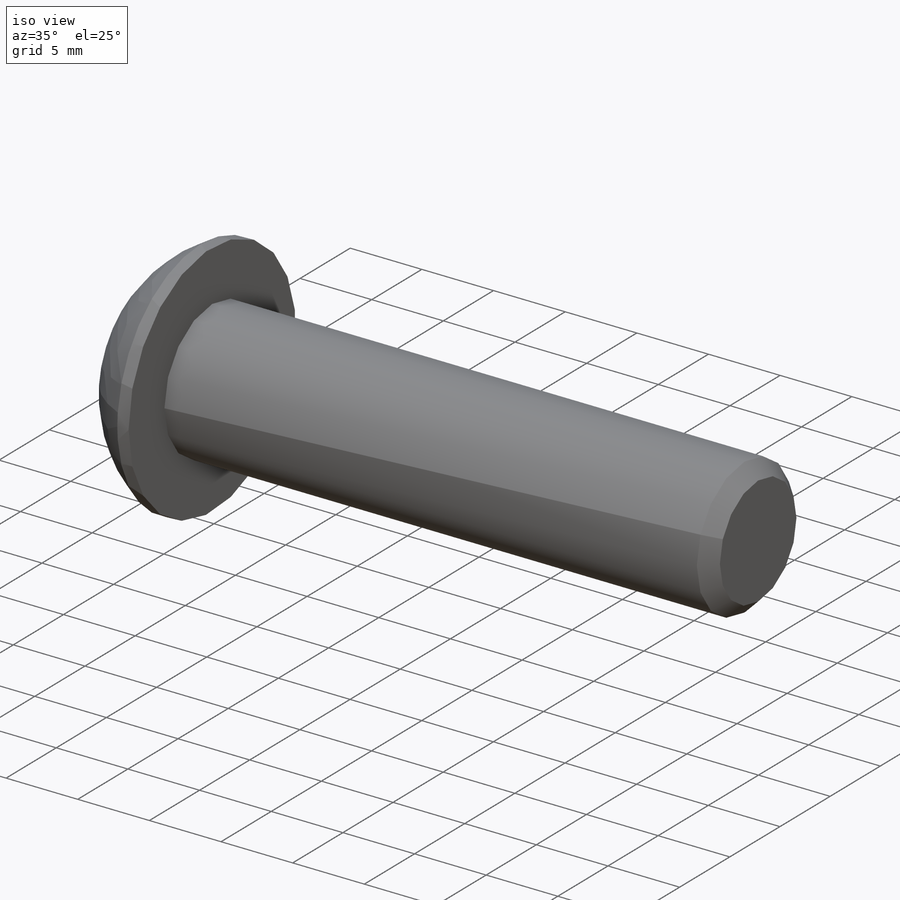
[diagram: iso view]
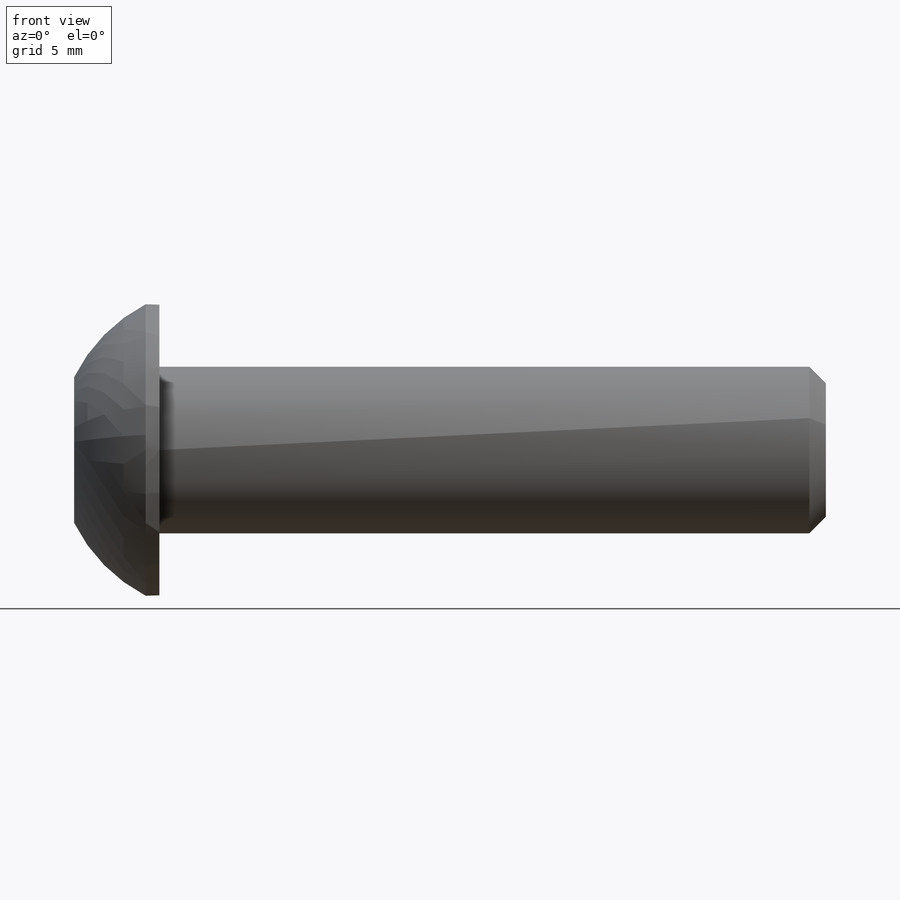
[diagram: front view]
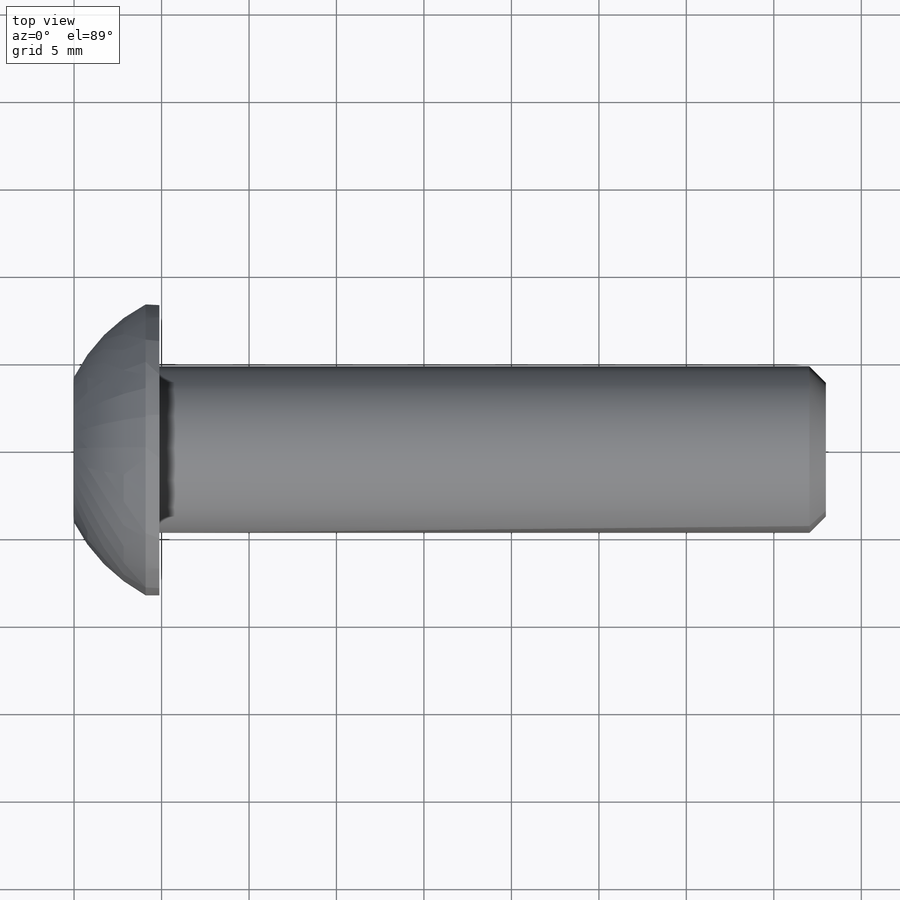
[diagram: top view]
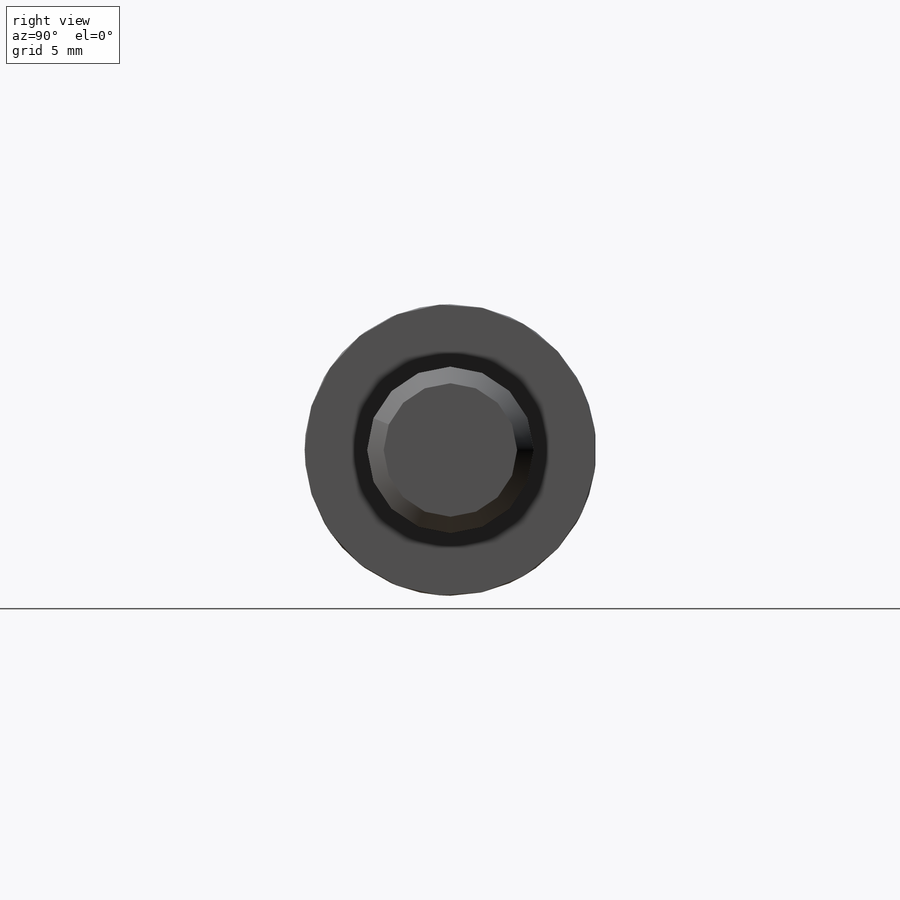
[diagram: right view]
SOLIDWORKS PART (.sldprt)
format: sldprt  version: not decoded by parser v0  size: 790,016 bytes
history: native  units: mm
features: sketch x5, plane x3, cut_revolve x2, cut_extrude x2, material x1, revolve x1, thread x1, pattern_circular x1, pattern_linear x1 (+8 scaffold rows collapsed)
feature tree (25):
  scaffold x8  (default folders/planes/origin — collapsed)
  material  "Material <not specified>"
  plane  "Plane1"
  plane  "Plane2"
  plane  "Plane3"
  sketch  "BodySke"  dims[c1.D2=~9.38469mm c1.Diameter=9.525mm c1.Length=38.1mm c1.Head_dia=16.6624mm c1.D1=8.3312mm c1.Head_ht=4.8768mm c1.Head_side_ht=0.7874mm c1.Minor_dia=7.6327mm c2.D2=~3.81635mm c2.Body_ch_ang=45.0deg c2.Advance=1.5875mm c2.Thread_nom=14.4018mm c2.Thread_lim=36.5125mm]
  revolve  "BaseBody"  [1 undecoded]
  thread  "ThreadCosmetic"  Diameter=14.4018mm Thread_length=14.4018mm Thread_minor=7.6327mm  [1 undecoded]
  sketch  "Sketch2"  dims[c1.D1=7.9375mm c1.D2=25.4mm c2.D2=60.0deg c2.Wall_thickness=12.827mm c2.PreBroach_depth=3.0988mm c2.PreBroach_dia=5.5626mm]
  cut_revolve  "PreBroach"  Angle=360deg
  sketch  "Sketch3"  dims[c1.D1=9.525mm c1.D2=9.525mm c1.Hex_size=19.05mm c1.D4=~14.664697mm c2.D4=120.0deg c2.Hex_size=15.875mm c2.D1=7.9375mm c2.D2=7.9375mm c2.D3=~13.528644mm c3.D3=120.0deg c3.D4=15.875mm c3.Hex_size=5.5626mm c3.D1=7.9375mm c3.D2=7.9375mm c4.D3=5.5626mm c4.D1=2.7813mm c4.D2=2.7813mm]
  cut_extrude  "Hex"  Depth=3.0988mm Key_eng=3.0988mm
  sketch  "Sketch4"  dims[c1.Spline_n_dim=5.6134mm c1.Spline_m_dim=6.5024mm c1.D1=5.8547mm c2.D1=30.0deg c2.D2=5.8547mm c3.D2=60.0deg c3.Spline_p_dim=2.794mm c4.Spline_p_dim=1.524mm c4.D3=0.762mm]
  cut_extrude  "Spline"  Depth=3.0988mm Key_eng=3.0988mm
  pattern_circular  "CirPattern1"  Count=6 Angle=60deg Num_teeth=6
  sketch  "ThdSchSke"  dims[c1.Thread_minor=~1.03886mm c1.Diameter=~1.413535mm c1.Start=~0.988134mm c1.D4=~4.446753mm c1.Vee=60.0deg c2.Thread_minor=~1.03886mm c2.Start=~2.540025mm c2.D1=~0.108159mm c2.D2=~0.108159mm c3.D1=~0.216319mm c3.SideAngle=55.0deg c3.D2=~0.216319mm c3.VeeAngle=70.0deg c3.Thread_minor=7.6327mm c3.Overcut=~11.90625mm c3.Diameter=9.525mm c3.D6=~8.326268mm c4.D1=~8.326268mm c5.D1=90.0deg c5.Start=63.5mm c6.Start=140.4874mm c7.Start=8.3947mm c8.Start=8.3947mm c9.Start=28.575mm]
  cut_revolve  "ThreadSchematic"  Angle=360deg
  pattern_linear  "ThdSchPat"  Count1=10 Count2=1 Spacing1=1.44018mm Spacing2=50mm Num_threads=10 Advance=1.44018mm
decode coverage: 12 of 13 modeling features carry decoded parameters
note: ~ marks probable driven/reference dimensions
note: 2 parameter values undecoded
note: suppression state not decoded; provenance and decode notes live in map.json
